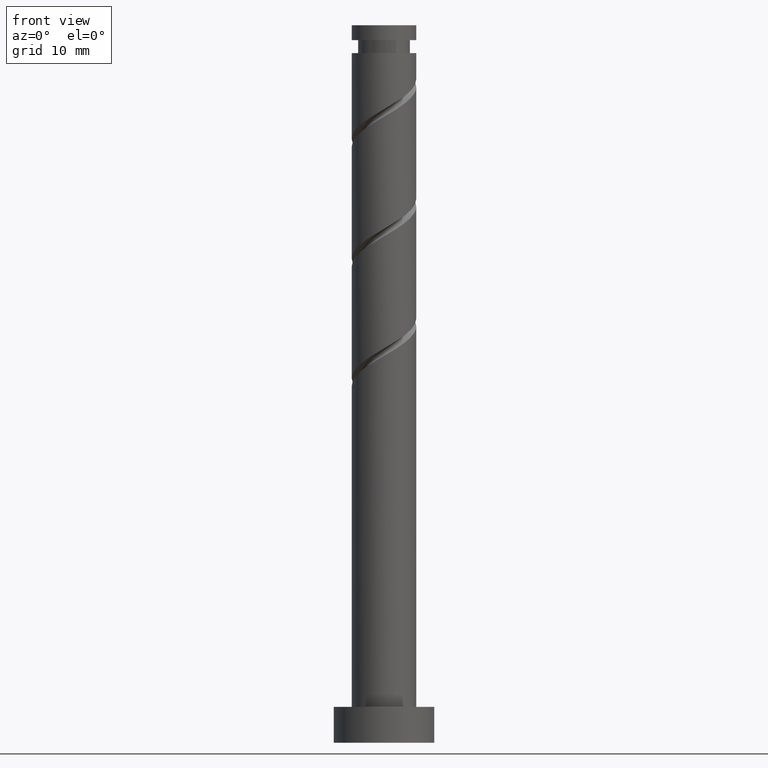
[diagram: clean part render]
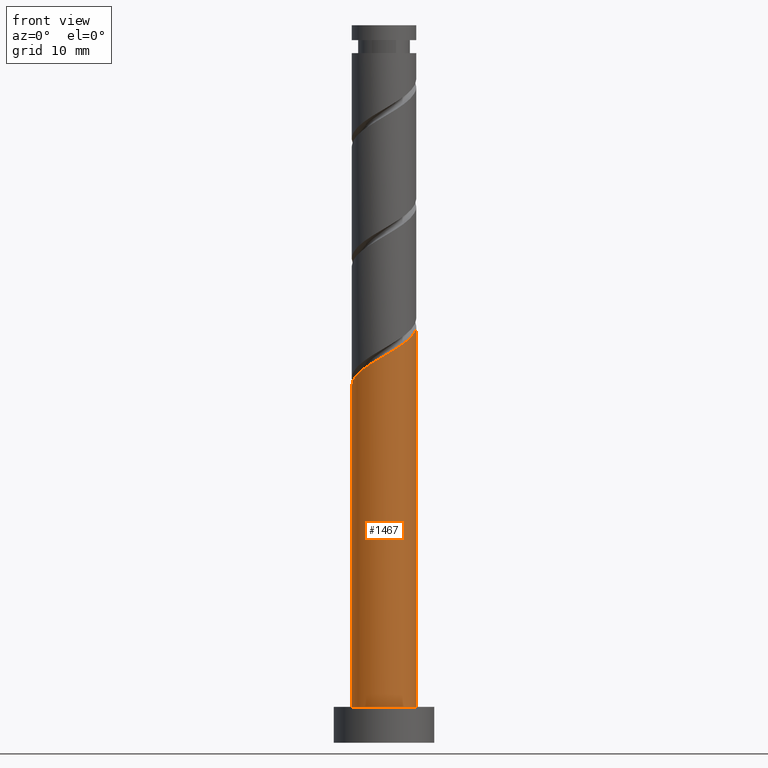
[diagram: same view with one face highlighted and labeled with its STEP entity id]
A machine part, front view. The second image highlights one B-rep face of the part: STEP entity #1467.
In plain terms, the highlighted cylindrical surface (edge-blend (fillet) strip) has radius 4.5 mm, axis along (-0, -0, -1).
Its self-contained STEP definition (entity closure, byte-faithful):
#6 = CARTESIAN_POINT ( 'NONE',  ( 4.500000000000000888, 5.510910596163089556E-16, 100.0000000000000000 ) ) ;
#28 = CARTESIAN_POINT ( 'NONE',  ( -4.500000000000000888, 0.000000000000000000, 100.0000000000000000 ) ) ;
#118 = VERTEX_POINT ( 'NONE', #595 ) ;
#150 = CYLINDRICAL_SURFACE ( 'NONE', #1278, 4.500000000000000888 ) ;
#172 = AXIS2_PLACEMENT_3D ( 'NONE', #378, #844, #627 ) ;
#182 = CARTESIAN_POINT ( 'NONE',  ( 3.026495220174905132, -3.423437390373191835, 55.83533793266750678 ) ) ;
#214 = EDGE_CURVE ( 'NONE', #1118, #1288, #1236, .T. ) ;
#219 = ORIENTED_EDGE ( 'NONE', *, *, #1085, .F. ) ;
#229 = CARTESIAN_POINT ( 'NONE',  ( -4.500000000000006217, 2.860812093730147383E-15, 49.74892748878986026 ) ) ;
#249 = VECTOR ( 'NONE', #1185, 1000.000000000000000 ) ;
#299 = VERTEX_POINT ( 'NONE', #396 ) ;
#378 = CARTESIAN_POINT ( 'NONE',  ( 0.000000000000000000, 0.000000000000000000, 5.000000000000000000 ) ) ;
#396 = CARTESIAN_POINT ( 'NONE',  ( -4.500000000000000888, 0.000000000000000000, 5.000000000000000000 ) ) ;
#411 = CARTESIAN_POINT ( 'NONE',  ( -3.371427683991401025, -2.980515957282637185, 51.66867126600083537 ) ) ;
#428 = CARTESIAN_POINT ( 'NONE',  ( -2.148709221265795222, -3.953865030884009091, 52.59459719192678051 ) ) ;
#494 = CARTESIAN_POINT ( 'NONE',  ( 0.1178867084716257591, -4.567898817565084535, 53.98348608081565203 ) ) ;
#501 = CARTESIAN_POINT ( 'NONE',  ( -4.478031358416139973, -0.9093030499170510206, 50.27978237711192833 ) ) ;
#527 = EDGE_LOOP ( 'NONE', ( #219, #834, #1205, #581 ) ) ;
#581 = ORIENTED_EDGE ( 'NONE', *, *, #712, .T. ) ;
#592 = LINE ( 'NONE', #28, #249 ) ;
#595 = CARTESIAN_POINT ( 'NONE',  ( 4.500000000000000888, 5.510910596163089556E-16, 5.000000000000000000 ) ) ;
#611 = CARTESIAN_POINT ( 'NONE',  ( 4.500000000000006217, -2.950445893011510033E-15, 58.08226082212320307 ) ) ;
#621 = CARTESIAN_POINT ( 'NONE',  ( 4.266916377387358850, -1.429484042717370951, 57.22422682155641382 ) ) ;
#627 = DIRECTION ( 'NONE',  ( 1.000000000000000000, 0.000000000000000000, 0.000000000000000000 ) ) ;
#712 = EDGE_CURVE ( 'NONE', #299, #118, #831, .T. ) ;
#774 = CARTESIAN_POINT ( 'NONE',  ( 4.500000000000006217, -0.7337446731920592713, 57.65234130975758120 ) ) ;
#809 = VECTOR ( 'NONE', #1397, 1000.000000000000000 ) ;
#831 = CIRCLE ( 'NONE', #172, 4.500000000000000888 ) ;
#834 = ORIENTED_EDGE ( 'NONE', *, *, #214, .F. ) ;
#844 = DIRECTION ( 'NONE',  ( 0.000000000000000000, 0.000000000000000000, 1.000000000000000000 ) ) ;
#846 = CARTESIAN_POINT ( 'NONE',  ( -4.500000000000006217, 2.860812093730146988E-15, 49.74892748878986026 ) ) ;
#860 = CARTESIAN_POINT ( 'NONE',  ( -3.896973063692447781, -2.386042293087501598, 51.20570830303786636 ) ) ;
#894 = CARTESIAN_POINT ( 'NONE',  ( -1.451536138241233731, -4.332740440290242745, 53.05756015488972110 ) ) ;
#944 = LINE ( 'NONE', #6, #809 ) ;
#956 = FACE_OUTER_BOUND ( 'NONE', #527, .T. ) ;
#973 = CARTESIAN_POINT ( 'NONE',  ( 3.520677496169491771, -2.802646957425388496, 56.29830089563049000 ) ) ;
#983 = CARTESIAN_POINT ( 'NONE',  ( 1.673090678320289459, -4.252101182434928184, 54.90941200674158296 ) ) ;
#1050 = CARTESIAN_POINT ( 'NONE',  ( 0.8954886933959584905, -4.410000000000006359, 54.44644904377862815 ) ) ;
#1085 = EDGE_CURVE ( 'NONE', #1288, #118, #944, .T. ) ;
#1098 = CARTESIAN_POINT ( 'NONE',  ( 2.349792949247598628, -3.837769286404060676, 55.37237496970453776 ) ) ;
#1100 = DIRECTION ( 'NONE',  ( -1.000000000000000000, 0.000000000000000000, 0.000000000000000000 ) ) ;
#1107 = DIRECTION ( 'NONE',  ( -0.000000000000000000, -0.000000000000000000, -1.000000000000000000 ) ) ;
#1118 = VERTEX_POINT ( 'NONE', #229 ) ;
#1157 = CARTESIAN_POINT ( 'NONE',  ( -4.498502170513392073, -0.1160957444799483318, 49.81681941414899484 ) ) ;
#1185 = DIRECTION ( 'NONE',  ( -0.000000000000000000, -0.000000000000000000, -1.000000000000000000 ) ) ;
#1191 = CARTESIAN_POINT ( 'NONE',  ( -2.845882304290352938, -3.574989621477774993, 52.13163422896380439 ) ) ;
#1201 = CARTESIAN_POINT ( 'NONE',  ( 4.014859772164073526, -2.181856524477582937, 56.76126385859342349 ) ) ;
#1205 = ORIENTED_EDGE ( 'NONE', *, *, #1296, .T. ) ;
#1236 =( BOUNDED_CURVE ( )  B_SPLINE_CURVE ( 2, ( #846, #1293, #1157, #501, #1312, #860, #411, #1191, #428, #894, #1347, #494, #1050, #983, #1098, #182, #973, #1201, #621, #774, #611 ),
 .UNSPECIFIED., .F., .T. ) 
 B_SPLINE_CURVE_WITH_KNOTS ( ( 3, 2, 2, 2, 2, 2, 2, 2, 2, 2, 3 ),
 ( 0.05452480538552902795, 0.05555555555555558023, 0.06944444444444441977, 0.08333333333333337034, 0.09722222222222220989, 0.1111111111111111605, 0.1250000000000000000, 0.1388888888888888395, 0.1527777777777777901, 0.1666666666666666297, 0.1795248053855290626 ),
 .UNSPECIFIED. ) 
 CURVE ( )  GEOMETRIC_REPRESENTATION_ITEM ( )  RATIONAL_B_SPLINE_CURVE ( ( 0.9071930855141248085, 0.9080659294509724200, 0.9090909090909125023, 0.8952797754656471874, 0.9090909090909125023, 0.8952797754656471874, 0.9090909090909125023, 0.8952797754656471874, 0.9090909090909125023, 0.8952797754656471874, 0.9090909090909125023, 0.8952797754656471874, 0.9090909090909125023, 0.8952797754656471874, 0.9090909090909125023, 0.8952797754656471874, 0.9090909090909125023, 0.8952797754656471874, 0.9090909090909125023, 0.8963047551055872697, 0.9071930855141248085 ) ) 
 REPRESENTATION_ITEM ( '' )  );
#1278 = AXIS2_PLACEMENT_3D ( 'NONE', #1463, #1107, #1100 ) ;
#1288 = VERTEX_POINT ( 'NONE', #1417 ) ;
#1293 = CARTESIAN_POINT ( 'NONE',  ( -4.500000000000005329, -0.05805753449409133821, 49.78294486272223196 ) ) ;
#1296 = EDGE_CURVE ( 'NONE', #1118, #299, #592, .T. ) ;
#1312 = CARTESIAN_POINT ( 'NONE',  ( -4.187502211054295209, -1.647672671502276476, 50.74274534007492576 ) ) ;
#1347 = CARTESIAN_POINT ( 'NONE',  ( -0.6668247148848046590, -4.450319628927664084, 53.52052311785271854 ) ) ;
#1397 = DIRECTION ( 'NONE',  ( -0.000000000000000000, -0.000000000000000000, -1.000000000000000000 ) ) ;
#1417 = CARTESIAN_POINT ( 'NONE',  ( 4.500000000000006217, -2.950445893011510033E-15, 58.08226082212320307 ) ) ;
#1463 = CARTESIAN_POINT ( 'NONE',  ( 0.000000000000000000, 0.000000000000000000, 100.0000000000000000 ) ) ;
#1467 = ADVANCED_FACE ( 'NONE', ( #956 ), #150, .T. ) ;